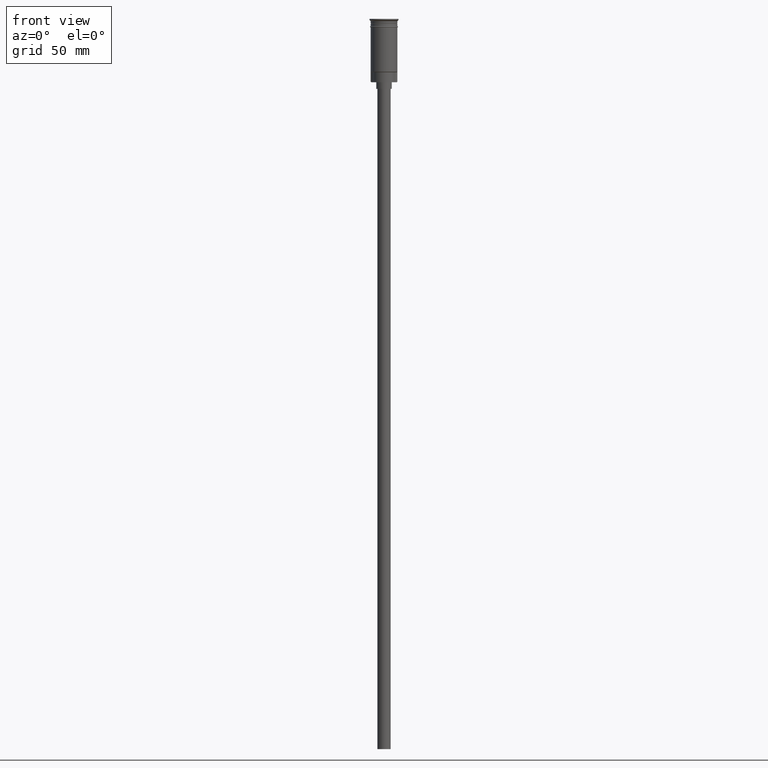
[diagram: clean part render]
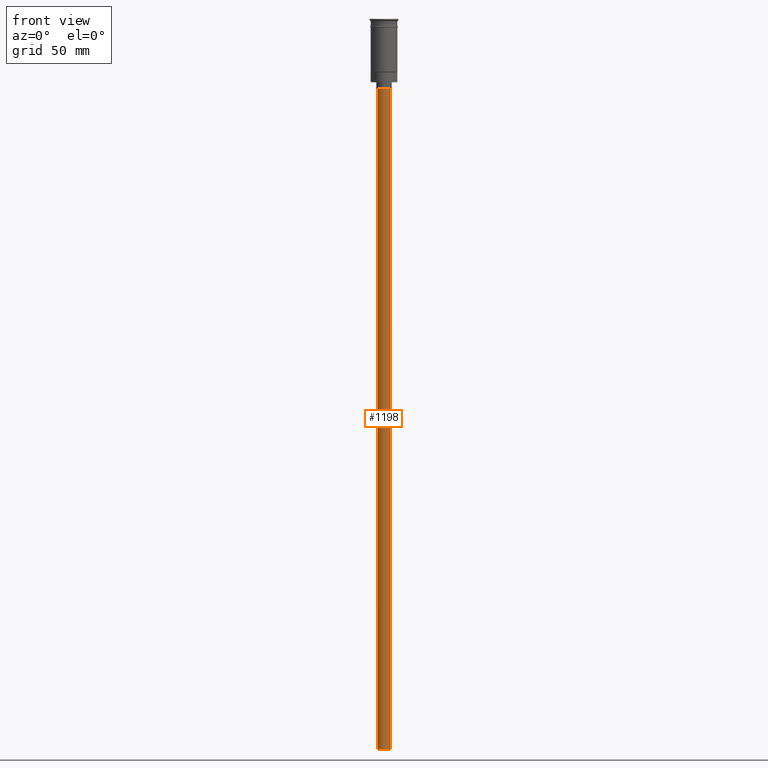
[diagram: same view with one face highlighted and labeled with its STEP entity id]
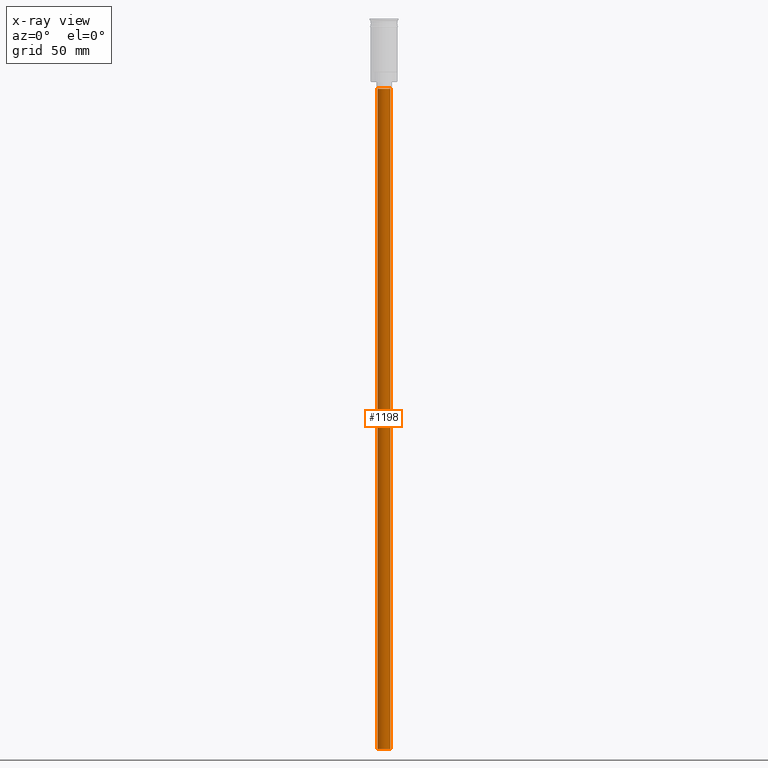
[diagram: x-ray of the same camera — body ghosted, the highlighted face saturated]
A machine part, front view. The second image highlights one B-rep face of the part: STEP entity #1198.
The next image is the same camera in x-ray: the body ghosted, the highlighted face saturated — about 0% of this face is hidden behind the body in this view.
In plain terms, the highlighted cylindrical surface (edge-blend (fillet) strip) has radius 3 mm, axis along (-0, -0, 1).
Its self-contained STEP definition (entity closure, byte-faithful):
#21 = CARTESIAN_POINT ( 'NONE',  ( -3.000000000000000444, 3.673940397442060361E-16, -31.50000000000000000 ) ) ;
#123 = AXIS2_PLACEMENT_3D ( 'NONE', #531, #408, #423 ) ;
#137 = VERTEX_POINT ( 'NONE', #158 ) ;
#158 = CARTESIAN_POINT ( 'NONE',  ( 3.000000000000000444, 0.000000000000000000, -328.5000000000000000 ) ) ;
#200 = EDGE_CURVE ( 'NONE', #916, #1352, #405, .T. ) ;
#201 = VERTEX_POINT ( 'NONE', #1403 ) ;
#217 = CARTESIAN_POINT ( 'NONE',  ( 0.000000000000000000, 0.000000000000000000, -328.5000000000000000 ) ) ;
#222 = VECTOR ( 'NONE', #1328, 1000.000000000000000 ) ;
#308 = DIRECTION ( 'NONE',  ( -0.000000000000000000, -0.000000000000000000, 1.000000000000000000 ) ) ;
#316 = DIRECTION ( 'NONE',  ( 0.000000000000000000, 0.000000000000000000, -1.000000000000000000 ) ) ;
#385 = CARTESIAN_POINT ( 'NONE',  ( -3.000000000000000444, 3.673940397442060361E-16, -328.5000000000000000 ) ) ;
#405 = LINE ( 'NONE', #385, #1235 ) ;
#408 = DIRECTION ( 'NONE',  ( 0.000000000000000000, 0.000000000000000000, -1.000000000000000000 ) ) ;
#423 = DIRECTION ( 'NONE',  ( -1.000000000000000000, 0.000000000000000000, 0.000000000000000000 ) ) ;
#435 = CARTESIAN_POINT ( 'NONE',  ( 0.000000000000000000, 0.000000000000000000, -328.5000000000000000 ) ) ;
#437 = ORIENTED_EDGE ( 'NONE', *, *, #574, .T. ) ;
#472 = EDGE_CURVE ( 'NONE', #201, #1352, #1444, .T. ) ;
#531 = CARTESIAN_POINT ( 'NONE',  ( 0.000000000000000000, 0.000000000000000000, -31.50000000000000000 ) ) ;
#574 = EDGE_CURVE ( 'NONE', #137, #201, #1322, .T. ) ;
#598 = DIRECTION ( 'NONE',  ( -1.000000000000000000, 0.000000000000000000, 0.000000000000000000 ) ) ;
#711 = EDGE_LOOP ( 'NONE', ( #1267, #1434, #437, #1562 ) ) ;
#730 = CARTESIAN_POINT ( 'NONE',  ( 3.000000000000000444, 0.000000000000000000, -328.5000000000000000 ) ) ;
#832 = FACE_OUTER_BOUND ( 'NONE', #711, .T. ) ;
#860 = EDGE_CURVE ( 'NONE', #137, #916, #1012, .T. ) ;
#909 = DIRECTION ( 'NONE',  ( -0.000000000000000000, -0.000000000000000000, 1.000000000000000000 ) ) ;
#916 = VERTEX_POINT ( 'NONE', #1591 ) ;
#1012 = CIRCLE ( 'NONE', #1260, 3.000000000000000444 ) ;
#1198 = ADVANCED_FACE ( 'NONE', ( #832 ), #1450, .T. ) ;
#1235 = VECTOR ( 'NONE', #909, 1000.000000000000000 ) ;
#1260 = AXIS2_PLACEMENT_3D ( 'NONE', #217, #316, #598 ) ;
#1267 = ORIENTED_EDGE ( 'NONE', *, *, #200, .F. ) ;
#1322 = LINE ( 'NONE', #730, #222 ) ;
#1328 = DIRECTION ( 'NONE',  ( -0.000000000000000000, -0.000000000000000000, 1.000000000000000000 ) ) ;
#1352 = VERTEX_POINT ( 'NONE', #21 ) ;
#1398 = AXIS2_PLACEMENT_3D ( 'NONE', #435, #308, #1594 ) ;
#1403 = CARTESIAN_POINT ( 'NONE',  ( 3.000000000000000444, 0.000000000000000000, -31.50000000000000000 ) ) ;
#1434 = ORIENTED_EDGE ( 'NONE', *, *, #860, .F. ) ;
#1444 = CIRCLE ( 'NONE', #123, 3.000000000000000444 ) ;
#1450 = CYLINDRICAL_SURFACE ( 'NONE', #1398, 3.000000000000000444 ) ;
#1562 = ORIENTED_EDGE ( 'NONE', *, *, #472, .T. ) ;
#1591 = CARTESIAN_POINT ( 'NONE',  ( -3.000000000000000444, 3.673940397442060361E-16, -328.5000000000000000 ) ) ;
#1594 = DIRECTION ( 'NONE',  ( 1.000000000000000000, 0.000000000000000000, 0.000000000000000000 ) ) ;